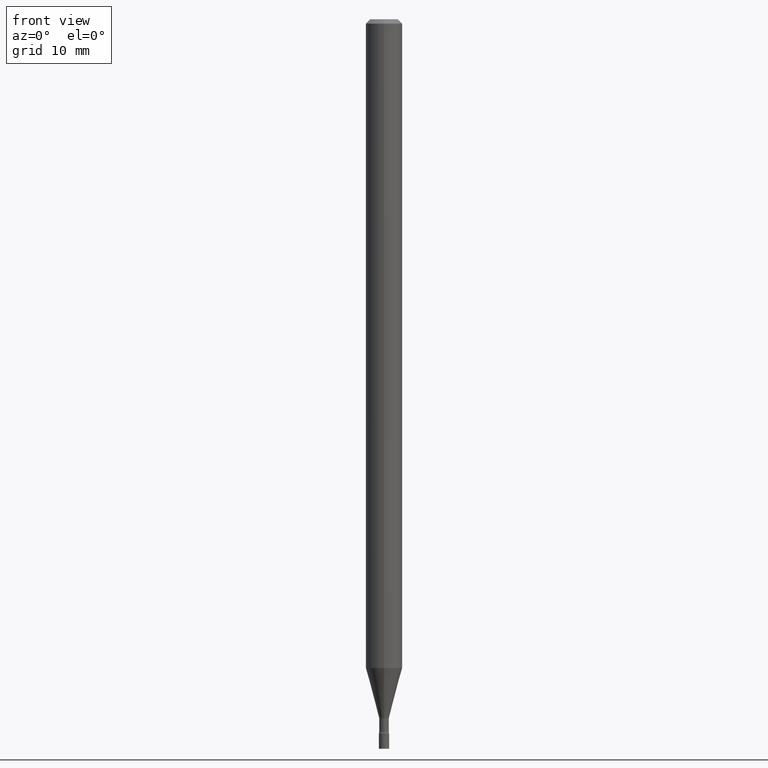
[diagram: clean part render]
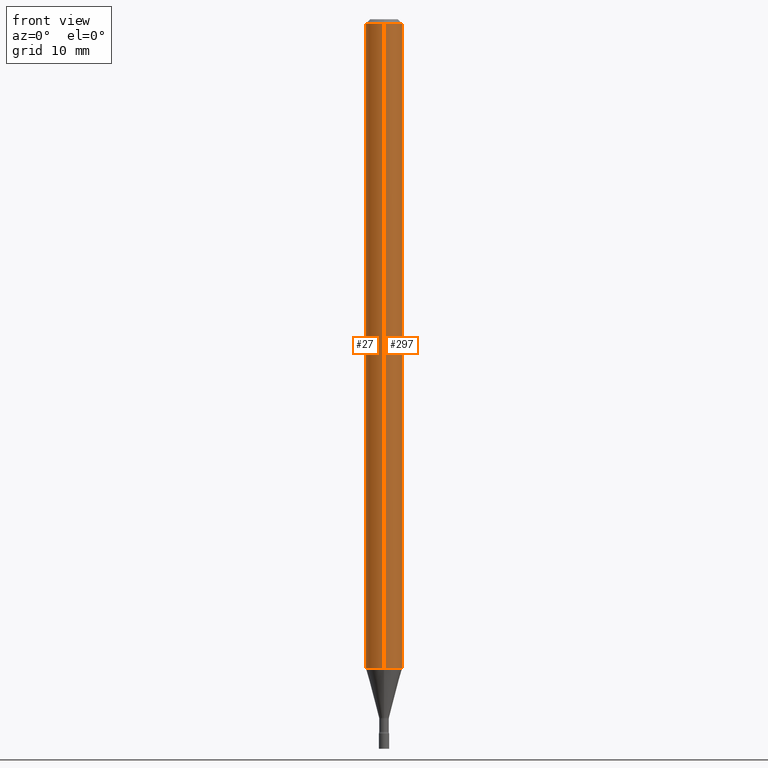
[diagram: same view with one multi-face feature highlighted, each face labeled with its STEP entity id]
A machine part, front view. The highlighted faces form ONE feature: a constant-radius fillet chain: 2 tangent blend faces with common blend radius 1.5875 mm. The faces share edges in the B-rep.
Their STEP definitions:
[1] entity #297 (Cylinder):
#12 = EDGE_CURVE ( 'NONE', #88, #520, #515, .T. ) ;
#17 = DIRECTION ( 'NONE',  ( -6.982962677686265922E-15, -1.000000000000000000, 4.370956789862821150E-15 ) ) ;
#24 = CARTESIAN_POINT ( 'NONE',  ( 4.440892098500625669E-16, 0.06250000000000000000, -2.182166251609361446E-16 ) ) ;
#42 = ORIENTED_EDGE ( 'NONE', *, *, #190, .T. ) ;
#48 = EDGE_CURVE ( 'NONE', #289, #409, #150, .T. ) ;
#88 = VERTEX_POINT ( 'NONE', #260 ) ;
#91 = DIRECTION ( 'NONE',  ( -2.445479515443959514E-29, 3.491466002574978313E-15, 1.000000000000000000 ) ) ;
#98 = AXIS2_PLACEMENT_3D ( 'NONE', #363, #367, #420 ) ;
#101 = FACE_OUTER_BOUND ( 'NONE', #492, .T. ) ;
#122 = ORIENTED_EDGE ( 'NONE', *, *, #48, .F. ) ;
#132 = VECTOR ( 'NONE', #457, 39.37007874015748143 ) ;
#136 = CARTESIAN_POINT ( 'NONE',  ( -4.364351673553916201E-16, -0.06250000000000000000, 2.182166251609361446E-16 ) ) ;
#150 = LINE ( 'NONE', #136, #132 ) ;
#189 = CARTESIAN_POINT ( 'NONE',  ( 5.436641031974993128E-29, -7.762014448073923594E-15, -2.223139060311453363 ) ) ;
#190 = EDGE_CURVE ( 'NONE', #289, #88, #284, .T. ) ;
#203 = ORIENTED_EDGE ( 'NONE', *, *, #12, .T. ) ;
#213 = VECTOR ( 'NONE', #261, 39.37007874015748143 ) ;
#260 = CARTESIAN_POINT ( 'NONE',  ( 4.440892098501167517E-16, 0.06249999999999222150, -2.223139060311453807 ) ) ;
#261 = DIRECTION ( 'NONE',  ( -2.445479515443959234E-29, 3.491466002574978313E-15, 1.000000000000000000 ) ) ;
#264 = CARTESIAN_POINT ( 'NONE',  ( -4.364351673553374352E-16, -0.06250000000000777156, -2.223139060311453363 ) ) ;
#265 = DIRECTION ( 'NONE',  ( -6.982962677686265922E-15, -1.000000000000000000, 3.483106191921935554E-15 ) ) ;
#284 = CIRCLE ( 'NONE', #320, 0.06250000000000000000 ) ;
#289 = VERTEX_POINT ( 'NONE', #264 ) ;
#297 = ADVANCED_FACE ( 'NONE', ( #101 ), #480, .T. ) ;
#302 = CARTESIAN_POINT ( 'NONE',  ( 3.668219273165946278E-31, -5.237199003862477479E-17, -0.01500000000000003067 ) ) ;
#320 = AXIS2_PLACEMENT_3D ( 'NONE', #189, #383, #17 ) ;
#322 = ORIENTED_EDGE ( 'NONE', *, *, #336, .F. ) ;
#336 = EDGE_CURVE ( 'NONE', #409, #520, #359, .T. ) ;
#359 = CIRCLE ( 'NONE', #518, 0.06250000000000000000 ) ;
#363 = CARTESIAN_POINT ( 'NONE',  ( 0.000000000000000000, 0.000000000000000000, 0.000000000000000000 ) ) ;
#364 = CARTESIAN_POINT ( 'NONE',  ( -4.364351673553912750E-16, -0.06250000000000005551, -0.01499999999999981209 ) ) ;
#367 = DIRECTION ( 'NONE',  ( -2.445479515443959514E-29, 3.491466002574978313E-15, 1.000000000000000000 ) ) ;
#383 = DIRECTION ( 'NONE',  ( -2.445479515443959514E-29, 3.491466002574978313E-15, 1.000000000000000000 ) ) ;
#409 = VERTEX_POINT ( 'NONE', #364 ) ;
#420 = DIRECTION ( 'NONE',  ( -6.982962677686265922E-15, -1.000000000000000000, 3.491466002574978313E-15 ) ) ;
#424 = CARTESIAN_POINT ( 'NONE',  ( 4.440892098501173434E-16, 0.06249999999999995143, -0.01500000000000024751 ) ) ;
#457 = DIRECTION ( 'NONE',  ( -2.445479515443959234E-29, 3.491466002574978313E-15, 1.000000000000000000 ) ) ;
#480 = CYLINDRICAL_SURFACE ( 'NONE', #98, 0.06250000000000000000 ) ;
#492 = EDGE_LOOP ( 'NONE', ( #42, #203, #322, #122 ) ) ;
#515 = LINE ( 'NONE', #24, #213 ) ;
#518 = AXIS2_PLACEMENT_3D ( 'NONE', #302, #91, #265 ) ;
#520 = VERTEX_POINT ( 'NONE', #424 ) ;
[2] entity #27 (Cylinder):
#12 = EDGE_CURVE ( 'NONE', #88, #520, #515, .T. ) ;
#19 = DIRECTION ( 'NONE',  ( -6.982962677686265922E-15, -1.000000000000000000, 4.370956789862821150E-15 ) ) ;
#24 = CARTESIAN_POINT ( 'NONE',  ( 4.440892098500625669E-16, 0.06250000000000000000, -2.182166251609361446E-16 ) ) ;
#27 = ADVANCED_FACE ( 'NONE', ( #66 ), #277, .T. ) ;
#29 = AXIS2_PLACEMENT_3D ( 'NONE', #311, #234, #267 ) ;
#31 = CARTESIAN_POINT ( 'NONE',  ( 5.436641031974993128E-29, -7.762014448073923594E-15, -2.223139060311453363 ) ) ;
#34 = EDGE_CURVE ( 'NONE', #88, #289, #57, .T. ) ;
#36 = AXIS2_PLACEMENT_3D ( 'NONE', #172, #220, #419 ) ;
#48 = EDGE_CURVE ( 'NONE', #289, #409, #150, .T. ) ;
#51 = EDGE_LOOP ( 'NONE', ( #401, #399, #415, #278 ) ) ;
#57 = CIRCLE ( 'NONE', #397, 0.06250000000000000000 ) ;
#66 = FACE_OUTER_BOUND ( 'NONE', #51, .T. ) ;
#88 = VERTEX_POINT ( 'NONE', #260 ) ;
#132 = VECTOR ( 'NONE', #457, 39.37007874015748143 ) ;
#136 = CARTESIAN_POINT ( 'NONE',  ( -4.364351673553916201E-16, -0.06250000000000000000, 2.182166251609361446E-16 ) ) ;
#138 = EDGE_CURVE ( 'NONE', #520, #409, #416, .T. ) ;
#150 = LINE ( 'NONE', #136, #132 ) ;
#172 = CARTESIAN_POINT ( 'NONE',  ( 3.668219273165946278E-31, -5.237199003862477479E-17, -0.01500000000000003067 ) ) ;
#213 = VECTOR ( 'NONE', #261, 39.37007874015748143 ) ;
#220 = DIRECTION ( 'NONE',  ( -2.445479515443959514E-29, 3.491466002574978313E-15, 1.000000000000000000 ) ) ;
#234 = DIRECTION ( 'NONE',  ( -2.445479515443959514E-29, 3.491466002574978313E-15, 1.000000000000000000 ) ) ;
#260 = CARTESIAN_POINT ( 'NONE',  ( 4.440892098501167517E-16, 0.06249999999999222150, -2.223139060311453807 ) ) ;
#261 = DIRECTION ( 'NONE',  ( -2.445479515443959234E-29, 3.491466002574978313E-15, 1.000000000000000000 ) ) ;
#264 = CARTESIAN_POINT ( 'NONE',  ( -4.364351673553374352E-16, -0.06250000000000777156, -2.223139060311453363 ) ) ;
#267 = DIRECTION ( 'NONE',  ( -6.982962677686265922E-15, -1.000000000000000000, 3.491466002574978313E-15 ) ) ;
#277 = CYLINDRICAL_SURFACE ( 'NONE', #29, 0.06250000000000000000 ) ;
#278 = ORIENTED_EDGE ( 'NONE', *, *, #138, .F. ) ;
#289 = VERTEX_POINT ( 'NONE', #264 ) ;
#311 = CARTESIAN_POINT ( 'NONE',  ( 0.000000000000000000, 0.000000000000000000, 0.000000000000000000 ) ) ;
#364 = CARTESIAN_POINT ( 'NONE',  ( -4.364351673553912750E-16, -0.06250000000000005551, -0.01499999999999981209 ) ) ;
#397 = AXIS2_PLACEMENT_3D ( 'NONE', #31, #502, #19 ) ;
#399 = ORIENTED_EDGE ( 'NONE', *, *, #34, .T. ) ;
#401 = ORIENTED_EDGE ( 'NONE', *, *, #12, .F. ) ;
#409 = VERTEX_POINT ( 'NONE', #364 ) ;
#415 = ORIENTED_EDGE ( 'NONE', *, *, #48, .T. ) ;
#416 = CIRCLE ( 'NONE', #36, 0.06250000000000000000 ) ;
#419 = DIRECTION ( 'NONE',  ( -6.982962677686265922E-15, -1.000000000000000000, 3.483106191921935554E-15 ) ) ;
#424 = CARTESIAN_POINT ( 'NONE',  ( 4.440892098501173434E-16, 0.06249999999999995143, -0.01500000000000024751 ) ) ;
#457 = DIRECTION ( 'NONE',  ( -2.445479515443959234E-29, 3.491466002574978313E-15, 1.000000000000000000 ) ) ;
#502 = DIRECTION ( 'NONE',  ( -2.445479515443959514E-29, 3.491466002574978313E-15, 1.000000000000000000 ) ) ;
#515 = LINE ( 'NONE', #24, #213 ) ;
#520 = VERTEX_POINT ( 'NONE', #424 ) ;